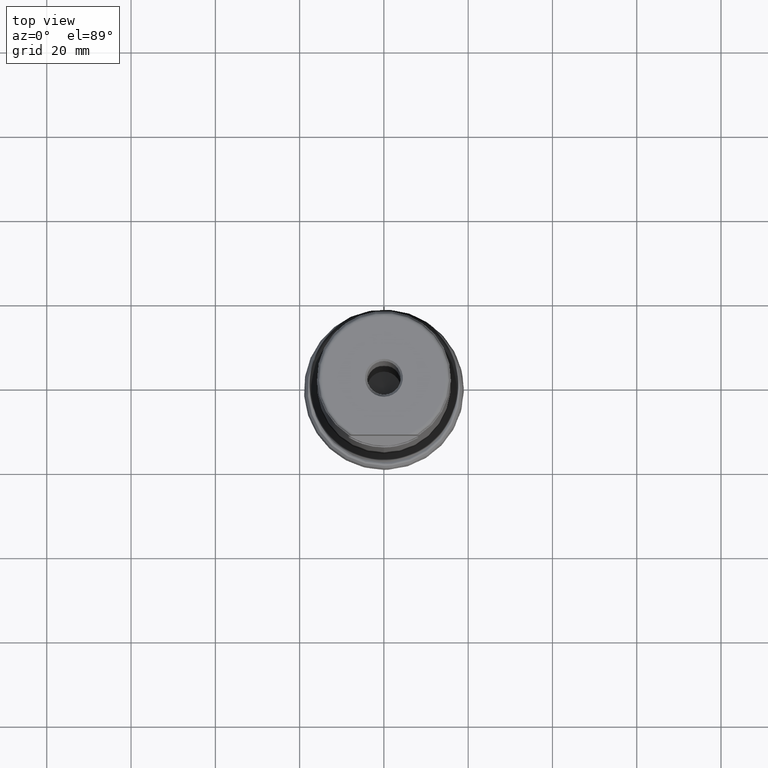
[diagram: clean part render]
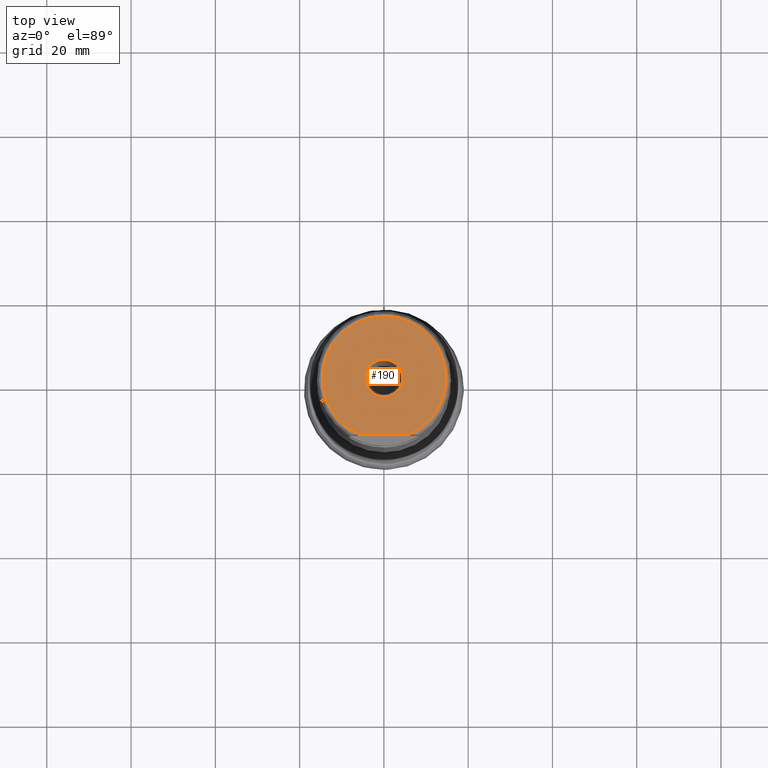
[diagram: same view with one face highlighted and labeled with its STEP entity id]
A machine part, top view. The second image highlights one B-rep face of the part: STEP entity #190.
In plain terms, the highlighted planar face has unit normal (0, 0, 1).
Its self-contained STEP definition (entity closure, byte-faithful):
#161=PLANE('',#823);
#190=ADVANCED_FACE('',(#291,#292),#161,.T.);
#250=CIRCLE('',#821,4.5);
#251=CIRCLE('',#822,14.675);
#291=FACE_BOUND('',#374,.T.);
#292=FACE_BOUND('',#375,.T.);
#374=EDGE_LOOP('',(#523));
#375=EDGE_LOOP('',(#524,#525));
#465=LINE('',#1406,#484);
#484=VECTOR('',#918,1.);
#523=ORIENTED_EDGE('',*,*,#717,.T.);
#524=ORIENTED_EDGE('',*,*,#718,.T.);
#525=ORIENTED_EDGE('',*,*,#719,.T.);
#655=VERTEX_POINT('',#1402);
#656=VERTEX_POINT('',#1404);
#657=VERTEX_POINT('',#1405);
#717=EDGE_CURVE('',#655,#655,#250,.T.);
#718=EDGE_CURVE('',#656,#657,#251,.T.);
#719=EDGE_CURVE('',#657,#656,#465,.T.);
#821=AXIS2_PLACEMENT_3D('',#1401,#914,#915);
#822=AXIS2_PLACEMENT_3D('',#1403,#916,#917);
#823=AXIS2_PLACEMENT_3D('',#1407,#919,#920);
#914=DIRECTION('',(0.,-1.17145536458252E-15,-1.));
#915=DIRECTION('',(0.,-1.,0.));
#916=DIRECTION('',(0.,1.17145536458252E-15,1.));
#917=DIRECTION('',(0.,-1.,1.8913509789185E-15));
#918=DIRECTION('',(1.,-1.37230767120917E-30,-1.17145536458252E-15));
#919=DIRECTION('',(0.,1.17145536458252E-15,1.));
#920=DIRECTION('',(0.,-1.,1.16573417585641E-15));
#1401=CARTESIAN_POINT('',(0.,1.93407280692575E-13,165.1));
#1402=CARTESIAN_POINT('',(0.,-4.49999999999981,165.1));
#1403=CARTESIAN_POINT('',(0.,1.93407280692575E-13,165.1));
#1404=CARTESIAN_POINT('',(5.78322282468843,-13.4873999999998,165.1));
#1405=CARTESIAN_POINT('',(-5.78322282468864,-13.4873999999998,165.1));
#1406=CARTESIAN_POINT('',(-17.5,-13.4873999999998,165.1));
#1407=CARTESIAN_POINT('',(0.,1.93407280692575E-13,165.1));